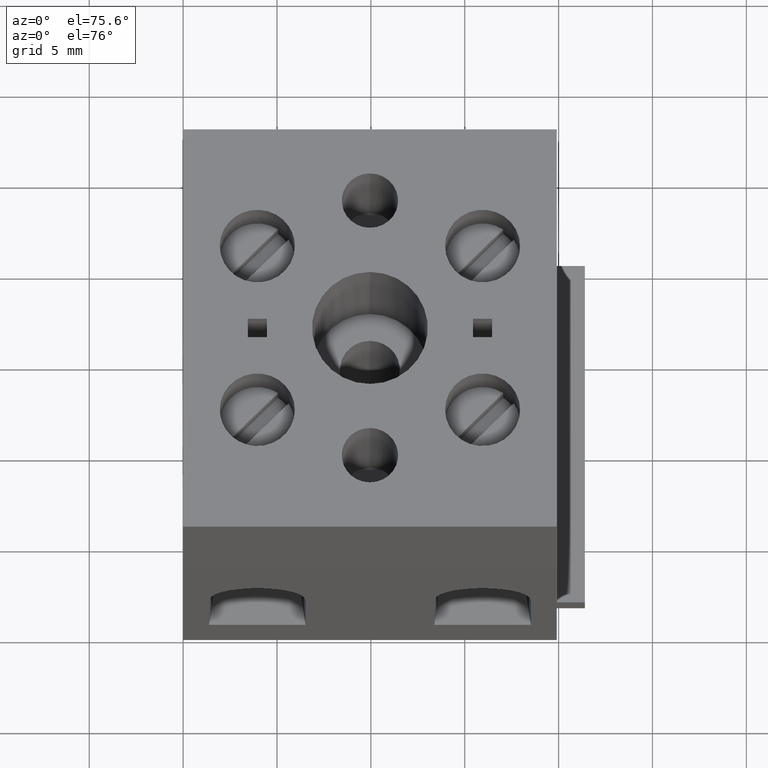
[diagram: clean part render]
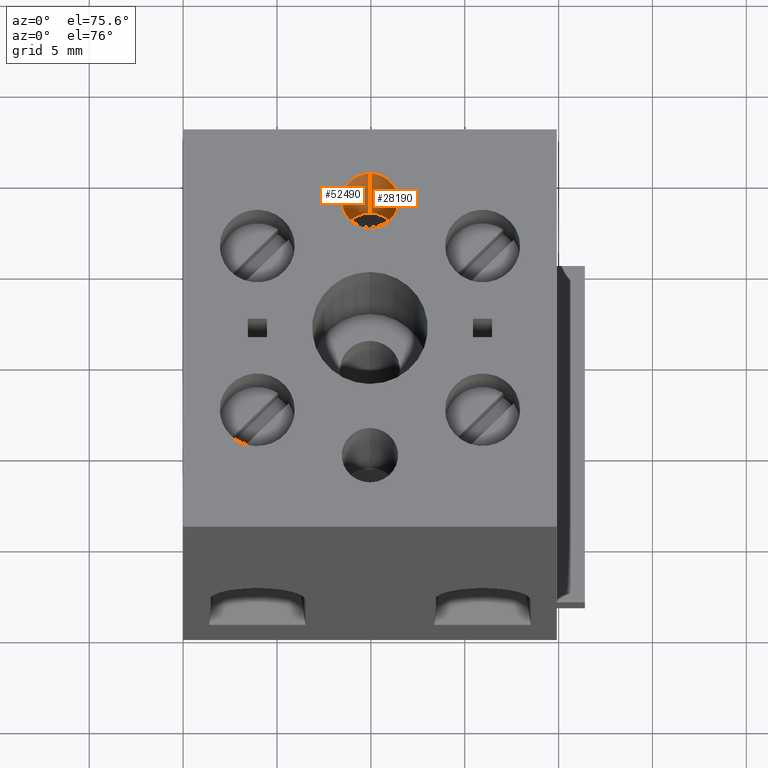
[diagram: same view with one multi-face feature highlighted, each face labeled with its STEP entity id]
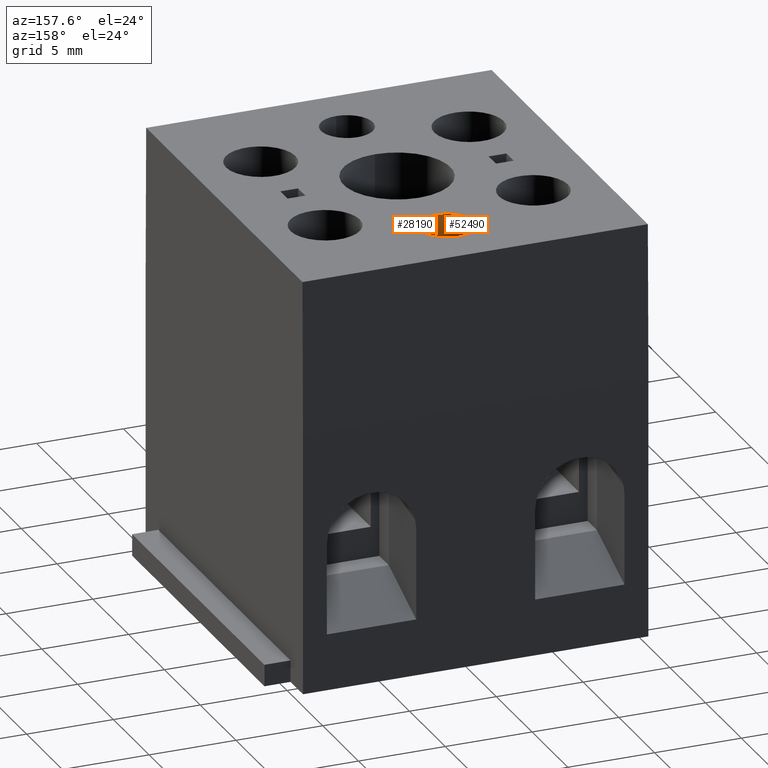
[diagram: same view with one multi-face feature highlighted, each face labeled with its STEP entity id]
A machine part, auxiliary view. The highlighted faces form ONE feature: a constant-radius fillet chain: 2 tangent blend faces with common blend radius 1.5 mm. The faces share edges in the B-rep.
A second angle (auxiliary view) of the same feature is appended — it is thin or edge-on in the first view.
Their STEP definitions:
[1] entity #52490 (Cylinder):
#27350=CARTESIAN_POINT('',(56.404081,24.156191,10.));
#27360=DIRECTION('',(0.,-1.,0.));
#27370=DIRECTION('',(1.,0.,0.));
#27380=AXIS2_PLACEMENT_3D('',#27350,#27360,#27370);
#27390=CIRCLE('',#27380,1.5);
#27400=CARTESIAN_POINT('',(54.904081,24.156191,10.));
#27410=VERTEX_POINT('',#27400);
#27420=CARTESIAN_POINT('',(57.904081,24.156191,10.));
#27430=VERTEX_POINT('',#27420);
#27440=EDGE_CURVE('',#27410,#27430,#27390,.T.);
#27930=CARTESIAN_POINT('',(57.904081,15.656191,10.));
#27940=DIRECTION('',(0.,-1.,0.));
#27950=VECTOR('',#27940,1.);
#27960=LINE('',#27930,#27950);
#27970=CARTESIAN_POINT('',(57.904081,15.656191,10.));
#27980=VERTEX_POINT('',#27970);
#27990=EDGE_CURVE('',#27430,#27980,#27960,.T.);
#28020=CARTESIAN_POINT('',(54.904081,15.656191,10.));
#28030=DIRECTION('',(0.,-1.,0.));
#28040=VECTOR('',#28030,1.);
#28050=LINE('',#28020,#28040);
#28060=CARTESIAN_POINT('',(54.904081,15.656191,10.));
#28070=VERTEX_POINT('',#28060);
#28080=EDGE_CURVE('',#27410,#28070,#28050,.T.);
#28100=CARTESIAN_POINT('',(56.404081,15.656191,10.));
#28110=DIRECTION('',(0.,-1.,0.));
#28120=DIRECTION('',(1.,0.,0.));
#28130=AXIS2_PLACEMENT_3D('',#28100,#28110,#28120);
#28140=CIRCLE('',#28130,1.5);
#28320=EDGE_CURVE('',#28070,#27980,#28140,.T.);
#52380=CARTESIAN_POINT('',(56.404081,15.656191,10.));
#52390=DIRECTION('',(0.,-1.,0.));
#52400=DIRECTION('',(1.,0.,0.));
#52410=AXIS2_PLACEMENT_3D('',#52380,#52390,#52400);
#52420=CYLINDRICAL_SURFACE('',#52410,1.5);
#52430=ORIENTED_EDGE('',*,*,#28320,.T.);
#52440=ORIENTED_EDGE('',*,*,#28080,.T.);
#52450=ORIENTED_EDGE('',*,*,#27440,.F.);
#52460=ORIENTED_EDGE('',*,*,#27990,.F.);
#52470=EDGE_LOOP('',(#52460,#52450,#52440,#52430));
#52480=FACE_OUTER_BOUND('',#52470,.T.);
#52490=ADVANCED_FACE('',(#52480),#52420,.F.);
[2] entity #28190 (Cylinder):
#27350=CARTESIAN_POINT('',(56.404081,24.156191,10.));
#27360=DIRECTION('',(0.,-1.,0.));
#27370=DIRECTION('',(1.,0.,0.));
#27380=AXIS2_PLACEMENT_3D('',#27350,#27360,#27370);
#27390=CIRCLE('',#27380,1.5);
#27400=CARTESIAN_POINT('',(54.904081,24.156191,10.));
#27410=VERTEX_POINT('',#27400);
#27420=CARTESIAN_POINT('',(57.904081,24.156191,10.));
#27430=VERTEX_POINT('',#27420);
#27460=EDGE_CURVE('',#27430,#27410,#27390,.T.);
#27880=CARTESIAN_POINT('',(56.404081,15.656191,10.));
#27890=DIRECTION('',(0.,-1.,0.));
#27900=DIRECTION('',(1.,0.,0.));
#27910=AXIS2_PLACEMENT_3D('',#27880,#27890,#27900);
#27920=CYLINDRICAL_SURFACE('',#27910,1.5);
#27930=CARTESIAN_POINT('',(57.904081,15.656191,10.));
#27940=DIRECTION('',(0.,-1.,0.));
#27950=VECTOR('',#27940,1.);
#27960=LINE('',#27930,#27950);
#27970=CARTESIAN_POINT('',(57.904081,15.656191,10.));
#27980=VERTEX_POINT('',#27970);
#27990=EDGE_CURVE('',#27430,#27980,#27960,.T.);
#28000=ORIENTED_EDGE('',*,*,#27990,.T.);
#28010=ORIENTED_EDGE('',*,*,#27460,.F.);
#28020=CARTESIAN_POINT('',(54.904081,15.656191,10.));
#28030=DIRECTION('',(0.,-1.,0.));
#28040=VECTOR('',#28030,1.);
#28050=LINE('',#28020,#28040);
#28060=CARTESIAN_POINT('',(54.904081,15.656191,10.));
#28070=VERTEX_POINT('',#28060);
#28080=EDGE_CURVE('',#27410,#28070,#28050,.T.);
#28090=ORIENTED_EDGE('',*,*,#28080,.F.);
#28100=CARTESIAN_POINT('',(56.404081,15.656191,10.));
#28110=DIRECTION('',(0.,-1.,0.));
#28120=DIRECTION('',(1.,0.,0.));
#28130=AXIS2_PLACEMENT_3D('',#28100,#28110,#28120);
#28140=CIRCLE('',#28130,1.5);
#28150=EDGE_CURVE('',#27980,#28070,#28140,.T.);
#28160=ORIENTED_EDGE('',*,*,#28150,.T.);
#28170=EDGE_LOOP('',(#28160,#28090,#28010,#28000));
#28180=FACE_OUTER_BOUND('',#28170,.T.);
#28190=ADVANCED_FACE('',(#28180),#27920,.F.);